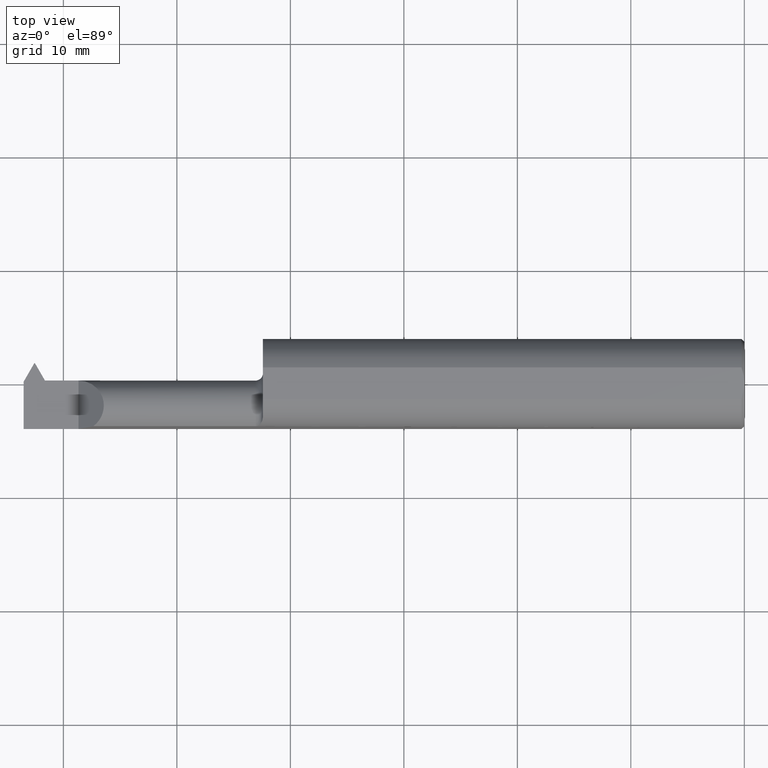
[diagram: clean part render]
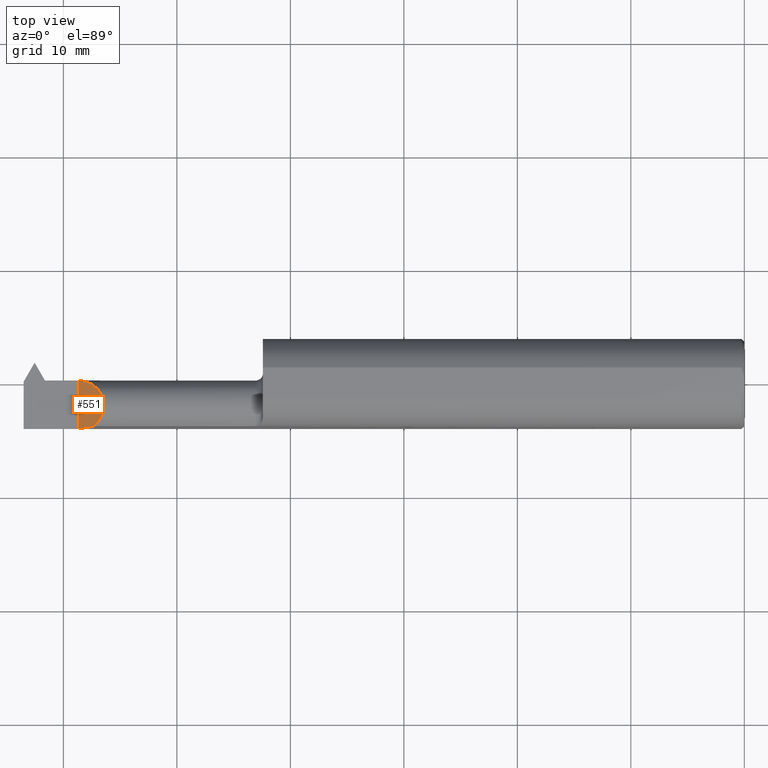
[diagram: same view with one face highlighted and labeled with its STEP entity id]
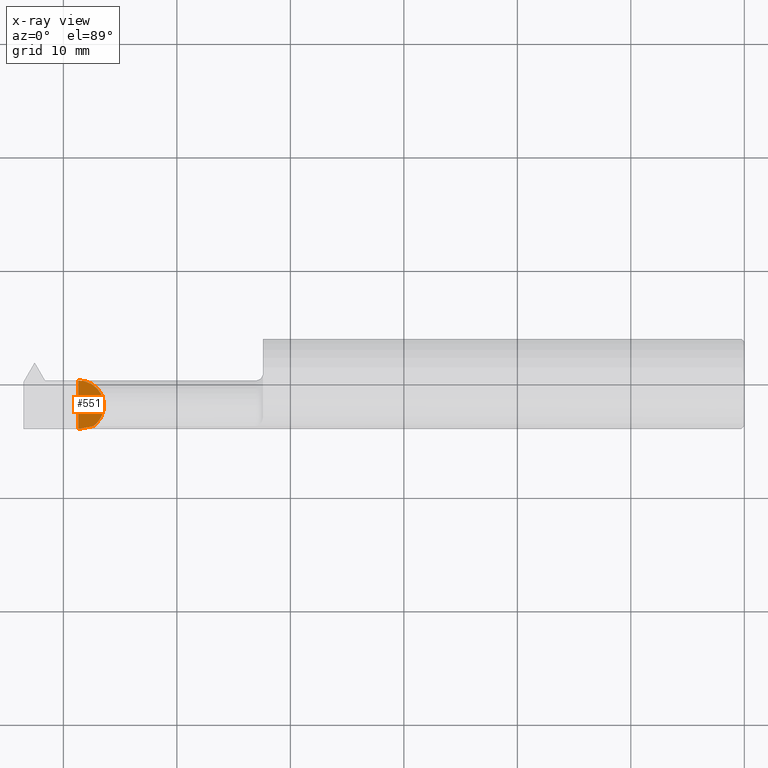
[diagram: x-ray of the same camera — body ghosted, the highlighted face saturated]
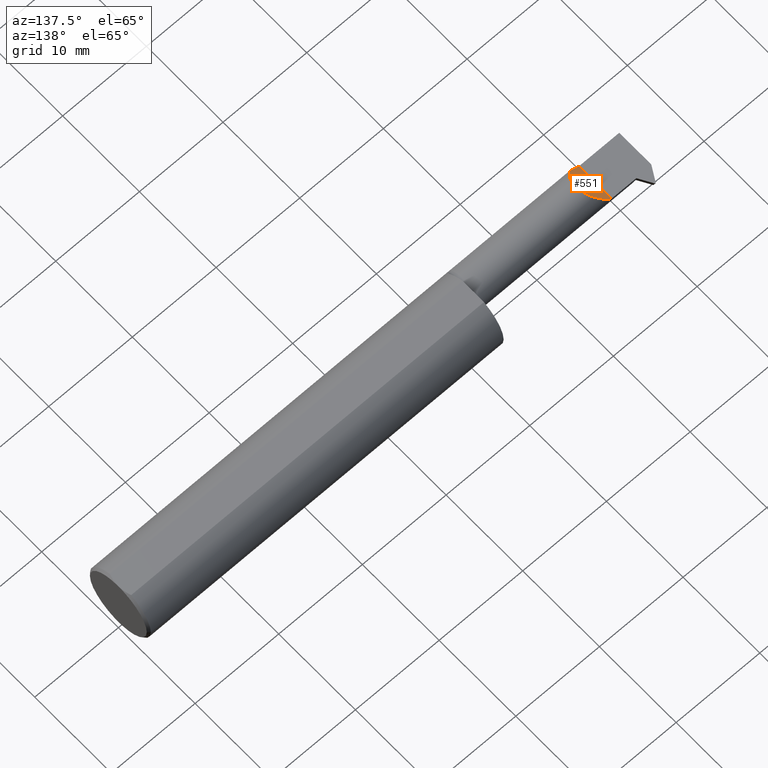
[diagram: same view with one face highlighted and labeled with its STEP entity id]
A machine part, top view. The second image highlights one B-rep face of the part: STEP entity #551.
The next image is the same camera in x-ray: the body ghosted, the highlighted face saturated — about 0% of this face is hidden behind the body in this view.
A second angle (auxiliary view) of the same face is appended — the face is thin or edge-on in the first view.
In plain terms, the highlighted planar face has unit normal (0.7071, 0, -0.7071).
Its self-contained STEP definition (entity closure, byte-faithful):
#9 = EDGE_CURVE ( 'NONE', #755, #439, #522, .T. ) ;
#93 = AXIS2_PLACEMENT_3D ( 'NONE', #332, #610, #674 ) ;
#119 = EDGE_LOOP ( 'NONE', ( #834, #371, #511 ) ) ;
#138 = VECTOR ( 'NONE', #827, 39.37007874015748143 ) ;
#139 = FACE_OUTER_BOUND ( 'NONE', #119, .T. ) ;
#159 = CARTESIAN_POINT ( 'NONE',  ( -2.274912119307999969, -0.1531282856005203030, 0.03508788069200007714 ) ) ;
#165 = CARTESIAN_POINT ( 'NONE',  ( -2.292330217250612812, -0.1561000000000000443, 0.01766978274938703006 ) ) ;
#236 = VERTEX_POINT ( 'NONE', #399 ) ;
#246 = CARTESIAN_POINT ( 'NONE',  ( -2.206585760359397241, 0.01189999999999992106, 0.1034142396406014797 ) ) ;
#252 = EDGE_CURVE ( 'NONE', #236, #755, #632, .T. ) ;
#253 =( BOUNDED_CURVE ( )  B_SPLINE_CURVE ( 3, ( #832, #165, #159, #429 ),
 .UNSPECIFIED., .F., .F. ) 
 B_SPLINE_CURVE_WITH_KNOTS ( ( 4, 4 ),
 ( 4.712388980384689674, 5.050356325447890704 ),
 .UNSPECIFIED. ) 
 CURVE ( )  GEOMETRIC_REPRESENTATION_ITEM ( )  RATIONAL_B_SPLINE_CURVE ( ( 1.000000000000000000, 0.9905041350217796969, 0.9905041350217796969, 1.000000000000000000 ) ) 
 REPRESENTATION_ITEM ( '' )  );
#324 = CARTESIAN_POINT ( 'NONE',  ( -2.310000000000000053, 0.01189999999999987769, 0.000000000000000000 ) ) ;
#331 = EDGE_CURVE ( 'NONE', #236, #439, #253, .T. ) ;
#332 = CARTESIAN_POINT ( 'NONE',  ( -2.310000000000000053, -0.2500000000000000000, 0.000000000000000000 ) ) ;
#357 = CARTESIAN_POINT ( 'NONE',  ( -2.310000000000000053, 0.01189999999999987769, 0.000000000000000000 ) ) ;
#371 = ORIENTED_EDGE ( 'NONE', *, *, #252, .F. ) ;
#399 = CARTESIAN_POINT ( 'NONE',  ( -2.310000000000000053, -0.1561000000000000998, 0.000000000000000000 ) ) ;
#429 = CARTESIAN_POINT ( 'NONE',  ( -2.258241905890881807, -0.1472695137976346991, 0.05175809410911768466 ) ) ;
#439 = VERTEX_POINT ( 'NONE', #453 ) ;
#453 = CARTESIAN_POINT ( 'NONE',  ( -2.258241905890881807, -0.1472695137976346991, 0.05175809410911768466 ) ) ;
#511 = ORIENTED_EDGE ( 'NONE', *, *, #331, .T. ) ;
#514 = CARTESIAN_POINT ( 'NONE',  ( -2.174606210947998441, -0.08644537803012225519, 0.1353937890520005016 ) ) ;
#522 =( BOUNDED_CURVE ( )  B_SPLINE_CURVE ( 3, ( #324, #246, #514, #784 ),
 .UNSPECIFIED., .F., .F. ) 
 B_SPLINE_CURVE_WITH_KNOTS ( ( 4, 4 ),
 ( 1.570796326794896558, 4.083606959790378355 ),
 .UNSPECIFIED. ) 
 CURVE ( )  GEOMETRIC_REPRESENTATION_ITEM ( )  RATIONAL_B_SPLINE_CURVE ( ( 1.000000000000000000, 0.5394915924057041012, 0.5394915924057041012, 1.000000000000000000 ) ) 
 REPRESENTATION_ITEM ( '' )  );
#551 = ADVANCED_FACE ( 'NONE', ( #139 ), #872, .F. ) ;
#556 = CARTESIAN_POINT ( 'NONE',  ( -2.310000000000000053, -0.2500000000000000000, 0.000000000000000000 ) ) ;
#610 = DIRECTION ( 'NONE',  ( 0.7071067811865437980, 0.000000000000000000, -0.7071067811865513475 ) ) ;
#632 = LINE ( 'NONE', #556, #138 ) ;
#674 = DIRECTION ( 'NONE',  ( -0.7071067811865512365, 0.000000000000000000, -0.7071067811865436870 ) ) ;
#755 = VERTEX_POINT ( 'NONE', #357 ) ;
#784 = CARTESIAN_POINT ( 'NONE',  ( -2.258241905890881807, -0.1472695137976346991, 0.05175809410911768466 ) ) ;
#827 = DIRECTION ( 'NONE',  ( -0.000000000000000000, 1.000000000000000000, -0.000000000000000000 ) ) ;
#832 = CARTESIAN_POINT ( 'NONE',  ( -2.310000000000000053, -0.1561000000000000998, 0.000000000000000000 ) ) ;
#834 = ORIENTED_EDGE ( 'NONE', *, *, #9, .F. ) ;
#872 = PLANE ( 'NONE',  #93 ) ;